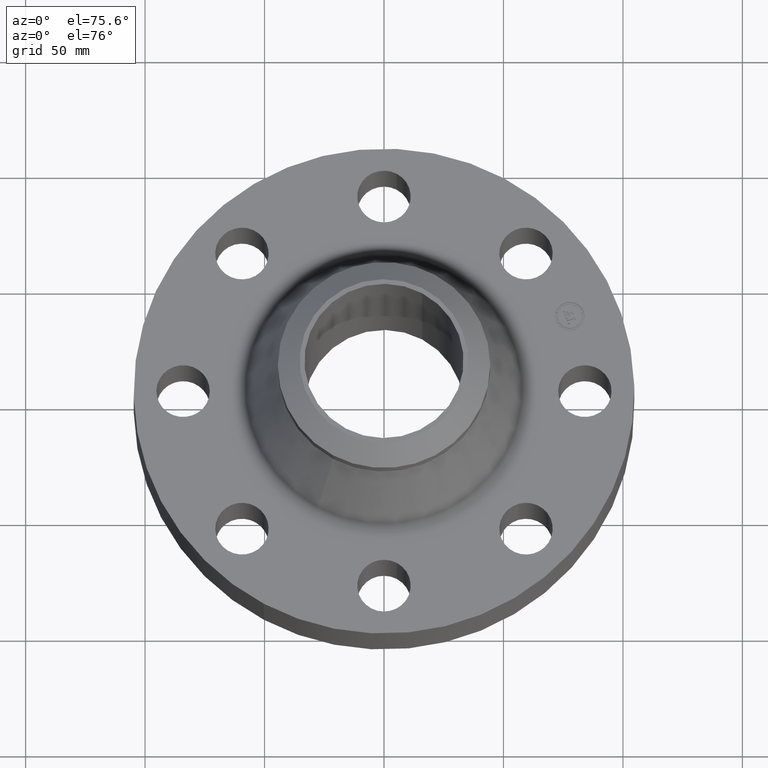
[diagram: clean part render]
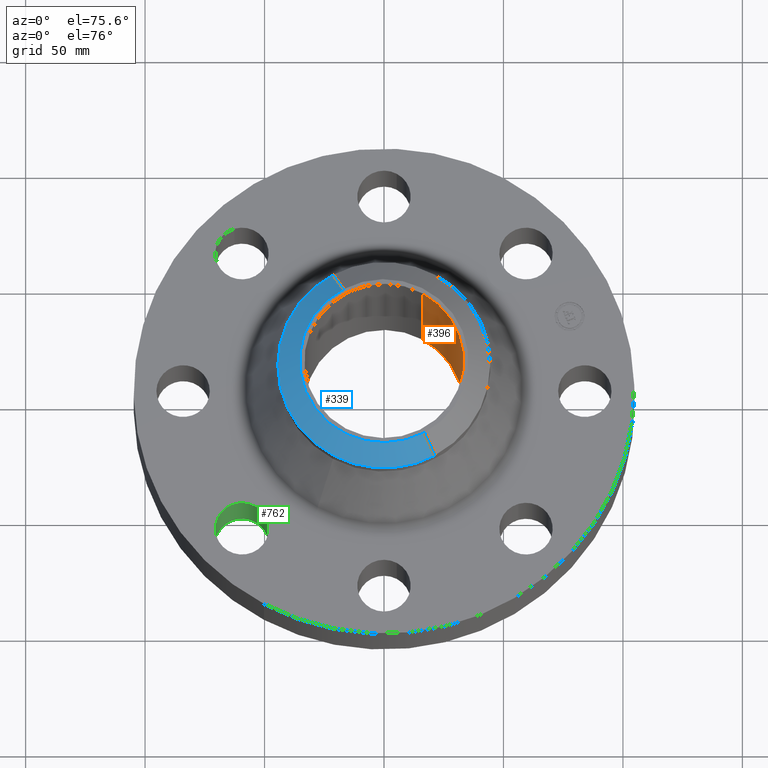
[diagram: same view with three faces highlighted in distinct colors, each labeled with its STEP entity id]
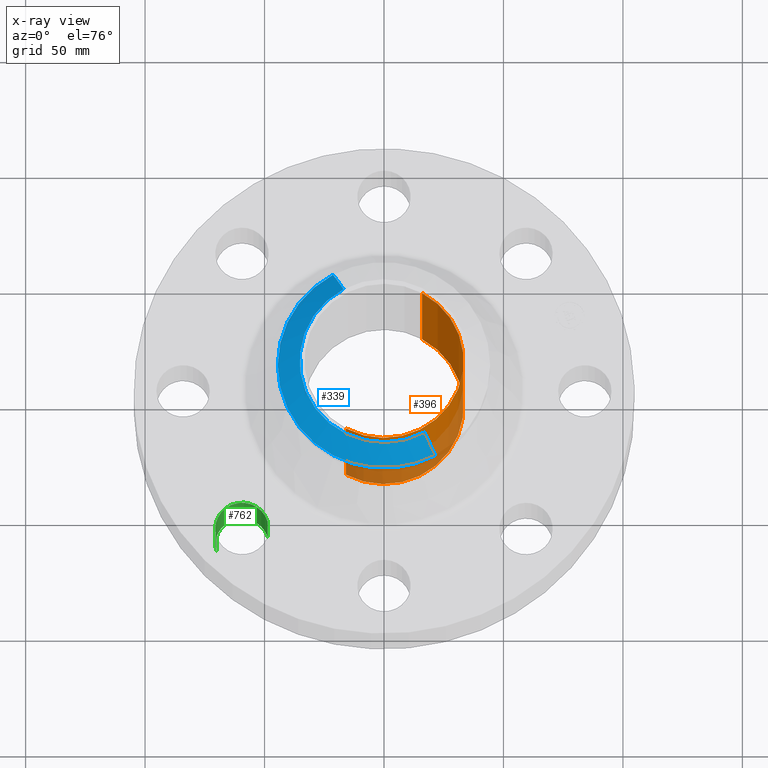
[diagram: x-ray of the same camera — body ghosted, the three highlighted faces saturated]
A machine part, auxiliary view with three faces highlighted in distinct colors.
The next image is the same camera in x-ray (body ghosted, the three faces saturated) — at least one of them is partly hidden behind the body in this view.
Their STEP definitions:

[orange] entity #396 — the highlighted cylindrical surface (partial cylindrical patch) has radius 33.3248 mm, axis along (0, 0, -1).
#343=AXIS2_PLACEMENT_3D('Cylinder Axis2P3D',#340,#341,#342) ;
#382=AXIS2_PLACEMENT_3D('Circle Axis2P3D',#380,#381,$) ;
#387=AXIS2_PLACEMENT_3D('Circle Axis2P3D',#385,#386,$) ;
#340=CARTESIAN_POINT('Axis2P3D Location',(0.,0.,1.53000000001)) ;
#349=CARTESIAN_POINT('Vertex',(-0.629006306651,-1.1513883212,3.06000000001)) ;
#351=CARTESIAN_POINT('Vertex',(0.629006306651,1.1513883212,3.06000000001)) ;
#354=CARTESIAN_POINT('Line Origine',(-0.629006306651,-1.1513883212,1.53000000001)) ;
#358=CARTESIAN_POINT('Vertex',(-0.629006306651,-1.1513883212,-3.63663604917E-015)) ;
#365=CARTESIAN_POINT('Vertex',(0.629006306651,1.1513883212,-3.63663604917E-015)) ;
#368=CARTESIAN_POINT('Line Origine',(0.629006306651,1.1513883212,1.53000000001)) ;
#380=CARTESIAN_POINT('Axis2P3D Location',(0.,0.,3.06000000001)) ;
#385=CARTESIAN_POINT('Axis2P3D Location',(0.,0.,-3.91637728372E-015)) ;
#341=DIRECTION('Axis2P3D Direction',(0.,0.,-0.0393700787402)) ;
#342=DIRECTION('Axis2P3D XDirection',(0.0188750212049,0.0345504945626,0.)) ;
#355=DIRECTION('Vector Direction',(0.,0.,-0.0393700787402)) ;
#369=DIRECTION('Vector Direction',(0.,0.,-0.0393700787402)) ;
#381=DIRECTION('Axis2P3D Direction',(0.,0.,-0.0393700787402)) ;
#386=DIRECTION('Axis2P3D Direction',(0.,0.,-0.0393700787402)) ;
#356=VECTOR('Line Direction',#355,0.0393700787402) ;
#370=VECTOR('Line Direction',#369,0.0393700787402) ;
#391=ORIENTED_EDGE('',*,*,#384,.F.) ;
#392=ORIENTED_EDGE('',*,*,#372,.T.) ;
#393=ORIENTED_EDGE('',*,*,#389,.T.) ;
#394=ORIENTED_EDGE('',*,*,#360,.F.) ;
#396=ADVANCED_FACE('PartBody',(#395),#344,.F.) ;
#383=CIRCLE('generated circle',#382,1.31200000001) ;
#388=CIRCLE('generated circle',#387,1.31200000001) ;
#344=CYLINDRICAL_SURFACE('generated cylinder',#343,1.31200000001) ;
#360=EDGE_CURVE('',#350,#359,#357,.T.) ;
#372=EDGE_CURVE('',#352,#366,#371,.T.) ;
#384=EDGE_CURVE('',#352,#350,#383,.T.) ;
#389=EDGE_CURVE('',#366,#359,#388,.T.) ;
#390=EDGE_LOOP('',(#391,#392,#393,#394)) ;
#395=FACE_OUTER_BOUND('',#390,.T.) ;
#357=LINE('Line',#354,#356) ;
#371=LINE('Line',#368,#370) ;
#350=VERTEX_POINT('',#349) ;
#352=VERTEX_POINT('',#351) ;
#359=VERTEX_POINT('',#358) ;
#366=VERTEX_POINT('',#365) ;

[blue] entity #339 — the highlighted conical surface has half-angle 52.5 deg.
#277=AXIS2_PLACEMENT_3D('Circle Axis2P3D',#275,#276,$) ;
#290=AXIS2_PLACEMENT_3D('Circle Axis2P3D',#288,#289,$) ;
#311=AXIS2_PLACEMENT_3D('Cone Axis2P3D',#308,#309,#310) ;
#322=AXIS2_PLACEMENT_3D('Circle Axis2P3D',#320,#321,$) ;
#258=CARTESIAN_POINT('Vertex',(-0.838994692561,-1.53576948331,2.78433022715)) ;
#272=CARTESIAN_POINT('Vertex',(0.838994692561,-1.53576948331,2.78433022715)) ;
#275=CARTESIAN_POINT('Axis2P3D Location',(0.,0.,2.78433022715)) ;
#288=CARTESIAN_POINT('Axis2P3D Location',(0.,0.,2.78433022715)) ;
#292=CARTESIAN_POINT('Vertex',(-0.838994692561,1.53576948331,2.78433022715)) ;
#308=CARTESIAN_POINT('Axis2P3D Location',(0.,0.,3.06000000001)) ;
#313=CARTESIAN_POINT('Line Origine',(0.752875520811,-1.37812939682,2.92216511358)) ;
#317=CARTESIAN_POINT('Vertex',(0.666756349061,-1.22048931033,3.06000000001)) ;
#320=CARTESIAN_POINT('Axis2P3D Location',(0.,0.,3.06000000001)) ;
#324=CARTESIAN_POINT('Vertex',(-0.666756349061,1.22048931033,3.06000000001)) ;
#327=CARTESIAN_POINT('Line Origine',(-0.752875520811,1.37812939682,2.92216511358)) ;
#276=DIRECTION('Axis2P3D Direction',(0.,0.,-0.0393700787402)) ;
#289=DIRECTION('Axis2P3D Direction',(0.,0.,-0.0393700787402)) ;
#309=DIRECTION('Axis2P3D Direction',(-0.,-0.,-0.0393700787402)) ;
#310=DIRECTION('Axis2P3D XDirection',(-0.0188750212049,0.0345504945626,0.)) ;
#314=DIRECTION('Vector Direction',(0.014974561121,-0.02741075027,-0.023966985394)) ;
#321=DIRECTION('Axis2P3D Direction',(0.,0.,-0.0393700787402)) ;
#328=DIRECTION('Vector Direction',(-0.014974561121,0.02741075027,-0.023966985394)) ;
#315=VECTOR('Line Direction',#314,0.0393700787402) ;
#329=VECTOR('Line Direction',#328,0.0393700787402) ;
#333=ORIENTED_EDGE('',*,*,#319,.F.) ;
#334=ORIENTED_EDGE('',*,*,#326,.F.) ;
#335=ORIENTED_EDGE('',*,*,#331,.T.) ;
#336=ORIENTED_EDGE('',*,*,#294,.T.) ;
#337=ORIENTED_EDGE('',*,*,#279,.F.) ;
#339=ADVANCED_FACE('PartBody',(#338),#312,.T.) ;
#278=CIRCLE('generated circle',#277,1.75000000001) ;
#291=CIRCLE('generated circle',#290,1.75000000001) ;
#323=CIRCLE('generated circle',#322,1.39074015749) ;
#312=CONICAL_SURFACE('Cone',#311,1.39074015749,0.916297857297) ;
#279=EDGE_CURVE('',#273,#259,#278,.T.) ;
#294=EDGE_CURVE('',#293,#259,#291,.F.) ;
#319=EDGE_CURVE('',#318,#273,#316,.T.) ;
#326=EDGE_CURVE('',#325,#318,#323,.F.) ;
#331=EDGE_CURVE('',#325,#293,#330,.T.) ;
#332=EDGE_LOOP('',(#333,#334,#335,#336,#337)) ;
#338=FACE_OUTER_BOUND('',#332,.T.) ;
#316=LINE('Line',#313,#315) ;
#330=LINE('Line',#327,#329) ;
#259=VERTEX_POINT('',#258) ;
#273=VERTEX_POINT('',#272) ;
#293=VERTEX_POINT('',#292) ;
#318=VERTEX_POINT('',#317) ;
#325=VERTEX_POINT('',#324) ;

[green] entity #762 — the highlighted cylindrical surface (edge-blend (fillet) strip) has radius 11.176 mm, axis along (-0, 0, -1).
#511=AXIS2_PLACEMENT_3D('Circle Axis2P3D',#509,#510,$) ;
#723=AXIS2_PLACEMENT_3D('Cylinder Axis2P3D',#720,#721,#722) ;
#753=AXIS2_PLACEMENT_3D('Circle Axis2P3D',#751,#752,$) ;
#504=CARTESIAN_POINT('Vertex',(-1.91832160854,-2.21664605203,0.)) ;
#506=CARTESIAN_POINT('Vertex',(-2.76272528293,-2.46440083944,-1.39870617276E-016)) ;
#509=CARTESIAN_POINT('Axis2P3D Location',(-2.34052344574,-2.34052344574,0.)) ;
#720=CARTESIAN_POINT('Axis2P3D Location',(-2.34052344574,-2.34052344574,1.05606299213)) ;
#725=CARTESIAN_POINT('Line Origine',(-1.91832160854,-2.21664605203,0.530000000002)) ;
#729=CARTESIAN_POINT('Vertex',(-1.91832160854,-2.21664605203,1.06)) ;
#732=CARTESIAN_POINT('Line Origine',(-2.76272528293,-2.46440083944,0.530000000002)) ;
#736=CARTESIAN_POINT('Vertex',(-2.76272528293,-2.46440083944,1.06)) ;
#751=CARTESIAN_POINT('Axis2P3D Location',(-2.34052344574,-2.34052344574,1.06)) ;
#510=DIRECTION('Axis2P3D Direction',(0.,0.,-0.0393700787402)) ;
#721=DIRECTION('Axis2P3D Direction',(-0.,0.,-0.0393700787402)) ;
#722=DIRECTION('Axis2P3D XDirection',(-0.0377775444876,-0.0110842335096,0.)) ;
#726=DIRECTION('Vector Direction',(0.,0.,-0.0393700787402)) ;
#733=DIRECTION('Vector Direction',(0.,0.,-0.0393700787402)) ;
#752=DIRECTION('Axis2P3D Direction',(-0.,0.,-0.0393700787402)) ;
#727=VECTOR('Line Direction',#726,0.0393700787402) ;
#734=VECTOR('Line Direction',#733,0.0393700787402) ;
#757=ORIENTED_EDGE('',*,*,#738,.F.) ;
#758=ORIENTED_EDGE('',*,*,#513,.T.) ;
#759=ORIENTED_EDGE('',*,*,#731,.T.) ;
#760=ORIENTED_EDGE('',*,*,#755,.F.) ;
#762=ADVANCED_FACE('PartBody',(#761),#724,.F.) ;
#512=CIRCLE('generated circle',#511,0.440000000002) ;
#754=CIRCLE('generated circle',#753,0.440000000002) ;
#724=CYLINDRICAL_SURFACE('generated cylinder',#723,0.440000000002) ;
#513=EDGE_CURVE('',#507,#505,#512,.T.) ;
#731=EDGE_CURVE('',#505,#730,#728,.F.) ;
#738=EDGE_CURVE('',#507,#737,#735,.F.) ;
#755=EDGE_CURVE('',#737,#730,#754,.T.) ;
#756=EDGE_LOOP('',(#757,#758,#759,#760)) ;
#761=FACE_OUTER_BOUND('',#756,.T.) ;
#728=LINE('Line',#725,#727) ;
#735=LINE('Line',#732,#734) ;
#505=VERTEX_POINT('',#504) ;
#507=VERTEX_POINT('',#506) ;
#730=VERTEX_POINT('',#729) ;
#737=VERTEX_POINT('',#736) ;